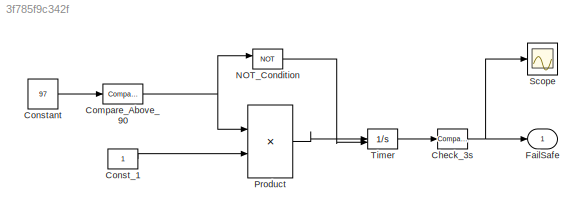
MODEL slx_3f785f9c342f
KIND model
CONFIG AbsTol = auto
CONFIG EnableMultiTasking = off
CONFIG FixedStep = auto
CONFIG MaxStep = auto
CONFIG MinStep = auto
CONFIG RelTol = 1e-3
CONFIG SampleTimeConstraint = Unconstrained
CONFIG SolverName = VariableStepAuto
CONFIG StartTime = 0.0
CONFIG StopTime = 10.0
BLOCK [Reference] Check_3s  REF=simulink/Logic and Bit
Operations/Compare
To Constant
  SourceBlock = simulink/Logic and Bit\nOperations/Compare\nTo Constant
  SourceType = Compare To Constant
BLOCK [Reference] Compare_Above_90  REF=simulink/Logic and Bit
Operations/Compare
To Constant
  SourceBlock = simulink/Logic and Bit\nOperations/Compare\nTo Constant
  SourceType = Compare To Constant
BLOCK [Constant] Const_1
BLOCK [Constant] Constant
  Value = 97
BLOCK [Outport] FailSafe
BLOCK [Logic] NOT_Condition
  AllPortsSameDT = off
  Operator = NOT
  OutDataTypeStr = boolean
BLOCK [Product] Product
BLOCK [Scope] Scope
  Floating = off
  GraphicalSettings = {"GraphicalSettings":{"LegacySettings":true,"Style":{"Style":{"PlotType":"Auto"}}}}
  NumInputPorts = 1
  WasSavedAsWebScope = on
BLOCK [Integrator] Timer
  ExternalReset = rising
NET Check_3s:1 -> FailSafe:1, Scope:1
NET Compare_Above_90:1 -> NOT_Condition:1, Product:1
LINE Const_1:1 -> Product:2
LINE Constant:1 -> Compare_Above_90:1
LINE NOT_Condition:1 -> Timer:2
LINE Product:1 -> Timer:1
LINE Timer:1 -> Check_3s:1
note: NET lines group one-source signal fan-out (src -> all destinations, sorted); 1:1 wires keep LINE
